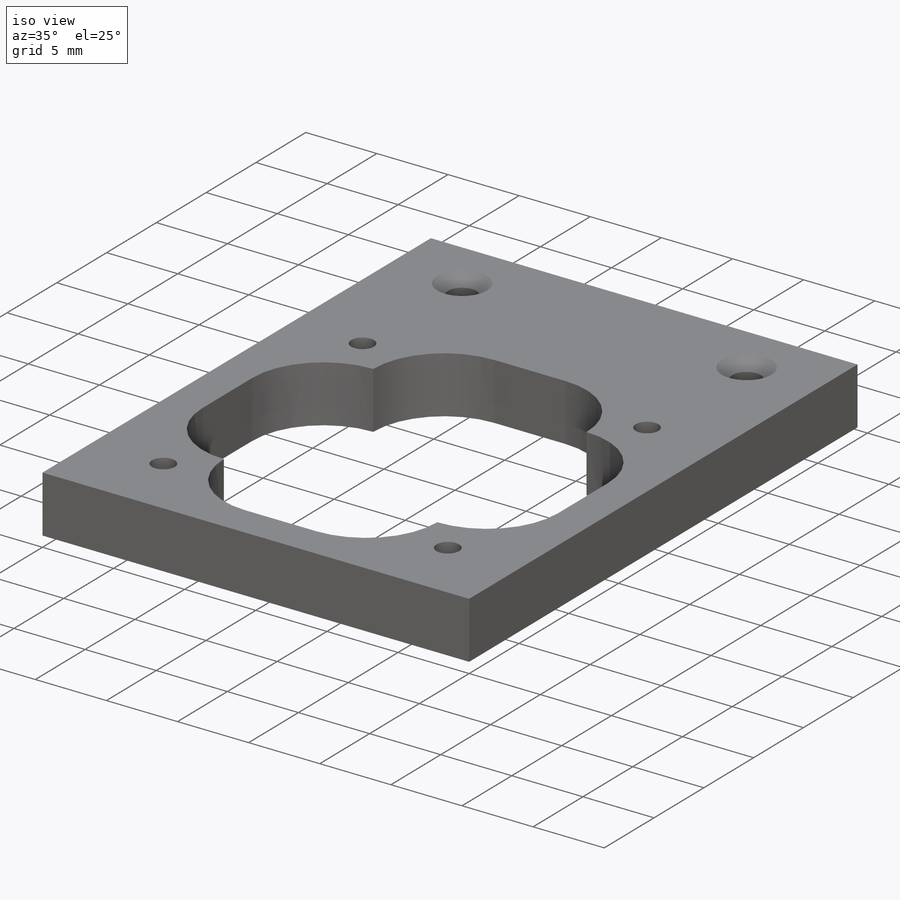
[diagram: iso view]
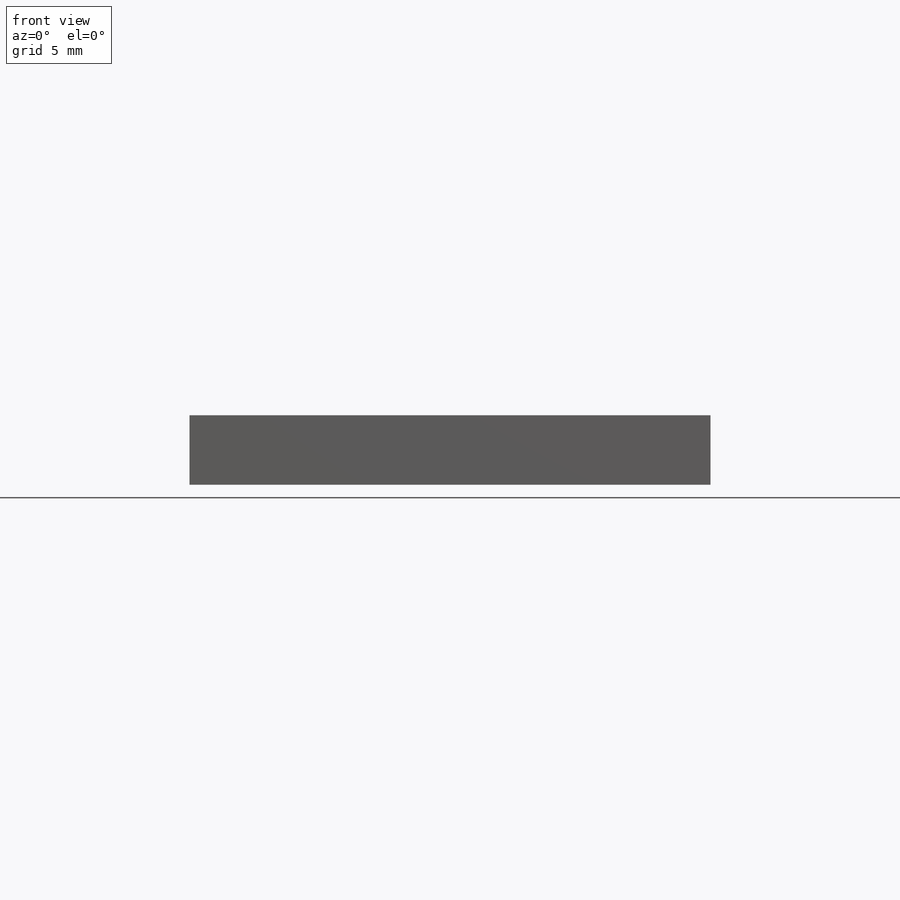
[diagram: front view]
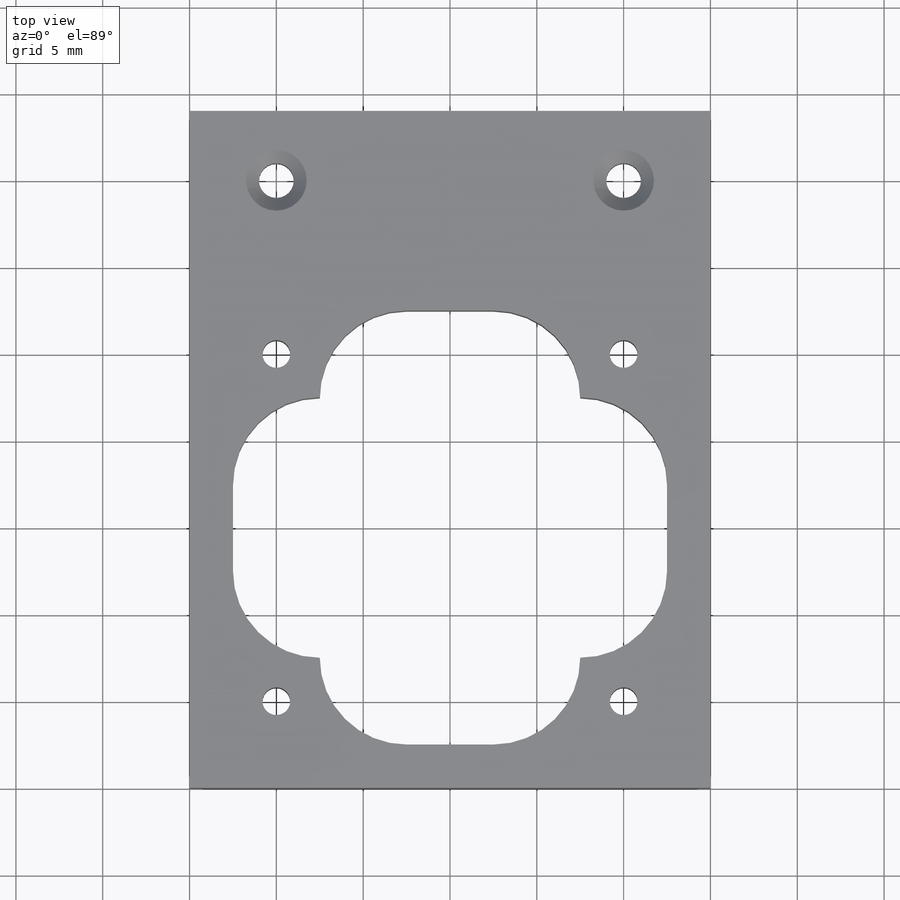
[diagram: top view]
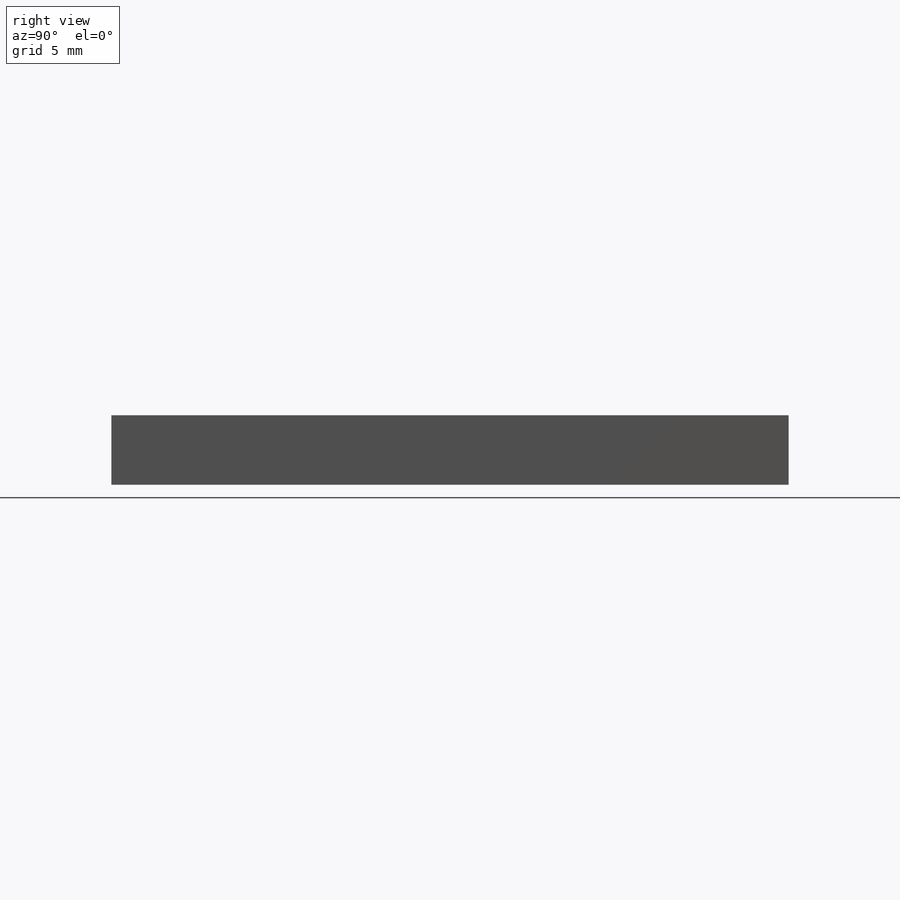
[diagram: right view]
SOLIDWORKS PART (.sldprt)
format: sldprt  version: not decoded by parser v0  size: 270,336 bytes
history: native  units: mm
features: sketch x5, thread x4, plane x3, hole x2, material x1, extrude x1, fillet x1 (+9 scaffold rows collapsed)
feature tree (26):
  scaffold x9  (default folders/planes/origin — collapsed)
  material  "3.1325 (EN-AW 2017A)"
  plane  "Ebene vorne"
  plane  "Ebene oben"
  plane  "Ebene rechts"
  sketch  "Skizze1"  dims[c1.D1=20.0mm c1.D2=30.0mm c1.D3=5.0mm c1.D4=8.0mm c2.D3=9.0mm c2.D4=4.0mm c2.D5=5.0mm c2.D6=15.0mm]
  extrude  "Aufsatz-Linear austragen1"  Depth=4mm
  fillet  "Verrundung1"  Radius=5mm
  hole  "Formsenkung für M3 Senkschraube mit Innensechskant1"  Diameter=2mm Depth=4mm
  sketch  "Skizze3"
  sketch  "Skizze4"  dims[hole-wizard template sketch: 55 standard entries collapsed; hole parameters kept: c17.Bohrungstiefe=4.0mm c17.Senkdurchmesser (Oben)=3.5mm c17.D4=~3.666174mm c17.Senkwinkel (Oben)=90.0deg]
  hole  "M2 Gewindebohrung1"  [1 undecoded]
  sketch  "Skizze6"
  thread  "Bohrungsgewinde1"  Diameter=2mm  [1 undecoded]
  thread  "Bohrungsgewinde2"  Diameter=2mm  [1 undecoded]
  thread  "Bohrungsgewinde3"  Diameter=2mm  [1 undecoded]
  thread  "Bohrungsgewinde4"  Diameter=2mm  [1 undecoded]
  sketch  "Skizze5"  dims[hole-wizard template sketch: 60 standard entries collapsed; hole parameters kept: c18.Bohrungstiefe=4.0mm]
decode coverage: 10 of 13 modeling features carry decoded parameters
note: ~ marks probable driven/reference dimensions
note: 5 parameter values undecoded
note: suppression state not decoded; provenance and decode notes live in map.json
